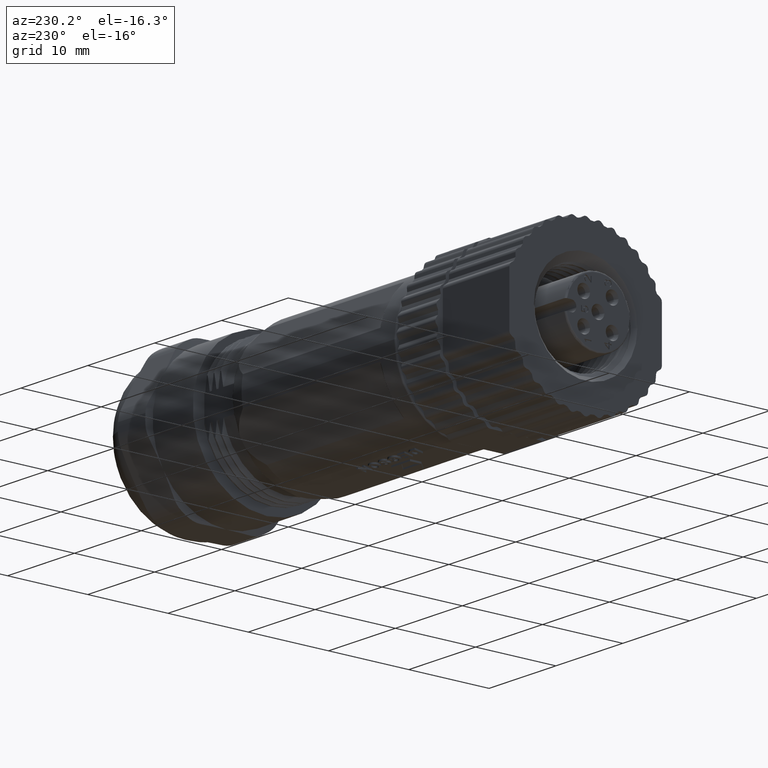
[diagram: clean part render]
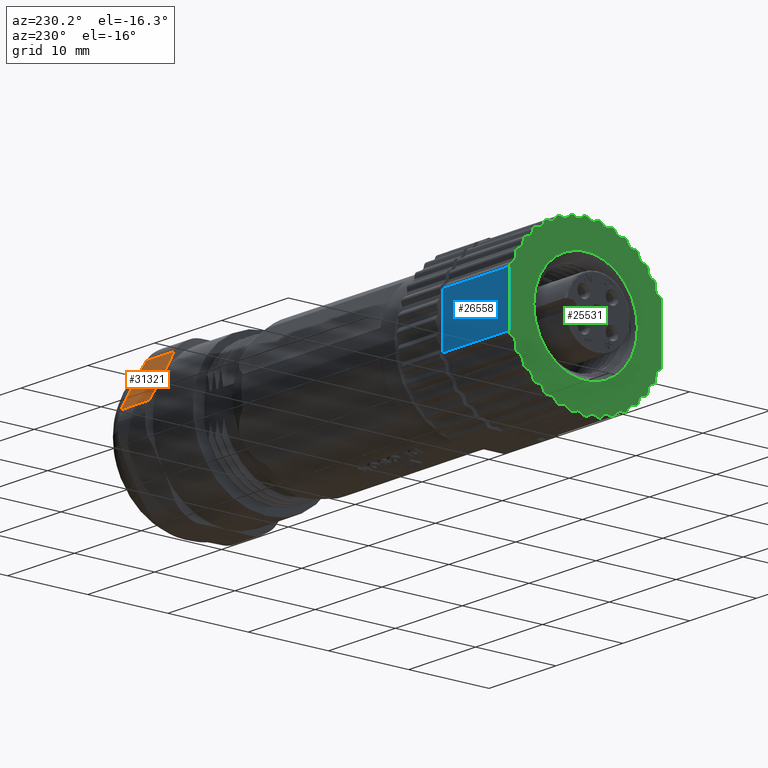
[diagram: same view with three faces highlighted in distinct colors, each labeled with its STEP entity id]
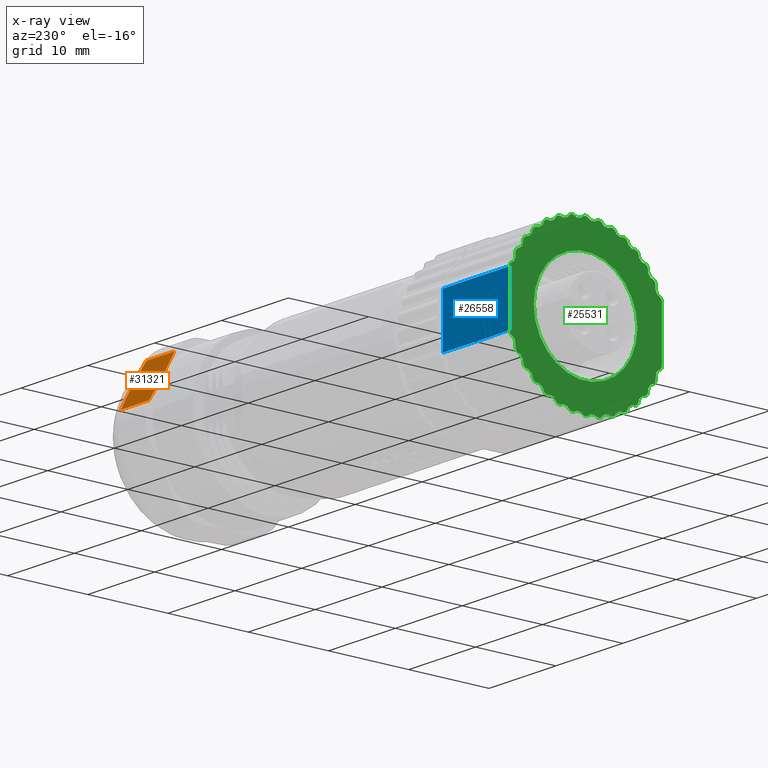
[diagram: x-ray of the same camera — body ghosted, the three highlighted faces saturated]
A machine part, auxiliary view with three faces highlighted in distinct colors.
The next image is the same camera in x-ray (body ghosted, the three faces saturated) — at least one of them is partly hidden behind the body in this view.
Their STEP definitions:

[orange] entity #31321 — the highlighted planar face has unit normal (0, -0.866, -0.5).
#8467=CARTESIAN_POINT('',(4.92E1,8.010734985006E0,4.625E0));
#8468=CARTESIAN_POINT('',(4.920000012125E1,7.993699117631E0,4.654506987845E0));
#8469=CARTESIAN_POINT('',(4.920001035525E1,7.959243789198E0,4.713282629317E0));
#8470=CARTESIAN_POINT('',(4.920087154031E1,7.909951330968E0,4.802721992246E0));
#8471=CARTESIAN_POINT('',(4.920037783399E1,7.871600750823E0,4.859217027936E0));
#8472=CARTESIAN_POINT('',(4.92E1,7.854575172206E0,4.888706195129E0));
#8622=CARTESIAN_POINT('',(4.92E1,7.854575172206E0,4.888706195129E0));
#8623=CARTESIAN_POINT('',(4.920211652600E1,7.735364668527E0,5.095184844297E0));
#8624=CARTESIAN_POINT('',(4.921326984591E1,7.501576704453E0,5.510031473571E0));
#8625=CARTESIAN_POINT('',(4.924064425893E1,7.143744342239E0,6.125825526117E0));
#8626=CARTESIAN_POINT('',(4.928288080243E1,6.789003226895E0,6.741343283081E0));
#8627=CARTESIAN_POINT('',(4.931957454008E1,6.552580764803E0,7.150597194663E0));
#8628=CARTESIAN_POINT('',(4.933997937589E1,6.434544958391E0,7.355041208480E0));
#8635=CARTESIAN_POINT('',(4.933997937589E1,6.434544958391E0,7.355041208480E0));
#8652=DIRECTION('',(1.E0,1.936294216248E-14,-3.683168346123E-14));
#8653=VECTOR('',#8652,4.220041248213E0);
#8654=CARTESIAN_POINT('',(4.933997937589E1,9.586925011621E0,1.894958791520E0));
#8655=LINE('',#8654,#8653);
#8656=DIRECTION('',(-1.E0,1.115473841969E-14,-1.725827453612E-14));
#8657=VECTOR('',#8656,4.220041248213E0);
#8658=CARTESIAN_POINT('',(5.356002062411E1,6.434544958391E0,7.355041208480E0));
#8659=LINE('',#8658,#8657);
#8681=CARTESIAN_POINT('',(4.933997937589E1,9.586925011621E0,1.894958791520E0));
#8682=CARTESIAN_POINT('',(4.930983039762E1,9.412522286926E0,2.197033171670E0));
#8683=CARTESIAN_POINT('',(4.925843889658E1,9.063269188048E0,2.801957283628E0));
#8684=CARTESIAN_POINT('',(4.921081201758E1,8.538235430848E0,3.711342426786E0));
#8685=CARTESIAN_POINT('',(4.92E1,8.186771399795E0,4.320095985604E0));
#8686=CARTESIAN_POINT('',(4.92E1,8.010734985006E0,4.625E0));
#8927=CARTESIAN_POINT('',(5.356002062411E1,9.586925011621E0,1.894958791520E0));
#8943=CARTESIAN_POINT('',(5.356002062411E1,9.586925011621E0,1.894958791520E0));
#8944=CARTESIAN_POINT('',(5.359016960238E1,9.412522286926E0,2.197033171670E0));
#8945=CARTESIAN_POINT('',(5.364156110341E1,9.063269188048E0,2.801957283628E0));
#8946=CARTESIAN_POINT('',(5.368918798241E1,8.538235430848E0,3.711342426786E0));
#8947=CARTESIAN_POINT('',(5.37E1,8.186771399795E0,4.320095985604E0));
#8948=CARTESIAN_POINT('',(5.37E1,8.010734985006E0,4.625E0));
#9158=CARTESIAN_POINT('',(5.37E1,8.010734985006E0,4.625E0));
#9159=CARTESIAN_POINT('',(5.37E1,7.834560396394E0,4.930143338479E0));
#9160=CARTESIAN_POINT('',(5.368917248387E1,7.482910995091E0,5.539217967987E0));
#9161=CARTESIAN_POINT('',(5.364150824162E1,6.957776022355E0,6.448778421597E0));
#9162=CARTESIAN_POINT('',(5.359013810847E1,6.608765500346E0,7.053282378093E0));
#9163=CARTESIAN_POINT('',(5.356002062411E1,6.434544958391E0,7.355041208480E0));
#23136=VERTEX_POINT('',#8635);
#23137=CARTESIAN_POINT('',(5.356002062411E1,6.434544958391E0,7.355041208480E0));
#23138=VERTEX_POINT('',#23137);
#23141=VERTEX_POINT('',#8927);
#23142=CARTESIAN_POINT('',(4.933997937589E1,9.586925011621E0,1.894958791520E0));
#23143=VERTEX_POINT('',#23142);
#23191=VERTEX_POINT('',#8948);
#23197=VERTEX_POINT('',#8686);
#23295=VERTEX_POINT('',#8472);
#31302=CARTESIAN_POINT('',(4.92E1,9.910570504202E0,1.334388354728E0));
#31303=DIRECTION('',(0.E0,-8.660254037844E-1,-5.E-1));
#31304=DIRECTION('',(0.E0,-5.E-1,8.660254037844E-1));
#31305=AXIS2_PLACEMENT_3D('',#31302,#31303,#31304);
#31306=PLANE('',#31305);
#31307=ORIENTED_EDGE('',*,*,#31138,.F.);
#31309=ORIENTED_EDGE('',*,*,#31308,.F.);
#31311=ORIENTED_EDGE('',*,*,#31310,.T.);
#31313=ORIENTED_EDGE('',*,*,#31312,.T.);
#31315=ORIENTED_EDGE('',*,*,#31314,.T.);
#31317=ORIENTED_EDGE('',*,*,#31316,.T.);
#31318=ORIENTED_EDGE('',*,*,#31290,.F.);
#31319=EDGE_LOOP('',(#31307,#31309,#31311,#31313,#31315,#31317,#31318));
#31320=FACE_OUTER_BOUND('',#31319,.F.);
#31321=ADVANCED_FACE('',(#31320),#31306,.F.);
#8473=B_SPLINE_CURVE_WITH_KNOTS('',3,(#8467,#8468,#8469,#8470,#8471,#8472),
.UNSPECIFIED.,.F.,.F.,(4,1,1,4),(0.E0,3.333333333333E-1,6.666666666667E-1,1.E0),
.UNSPECIFIED.);
#8629=B_SPLINE_CURVE_WITH_KNOTS('',3,(#8622,#8623,#8624,#8625,#8626,#8627,
#8628),.UNSPECIFIED.,.F.,.F.,(4,1,1,1,4),(0.E0,2.5E-1,5.E-1,7.5E-1,1.E0),
.UNSPECIFIED.);
#8687=B_SPLINE_CURVE_WITH_KNOTS('',3,(#8681,#8682,#8683,#8684,#8685,#8686),
.UNSPECIFIED.,.F.,.F.,(4,1,1,4),(0.E0,3.333333333333E-1,6.666666666667E-1,1.E0),
.UNSPECIFIED.);
#8949=B_SPLINE_CURVE_WITH_KNOTS('',3,(#8943,#8944,#8945,#8946,#8947,#8948),
.UNSPECIFIED.,.F.,.F.,(4,1,1,4),(0.E0,3.333333333333E-1,6.666666666667E-1,1.E0),
.UNSPECIFIED.);
#9164=B_SPLINE_CURVE_WITH_KNOTS('',3,(#9158,#9159,#9160,#9161,#9162,#9163),
.UNSPECIFIED.,.F.,.F.,(4,1,1,4),(0.E0,3.333333333333E-1,6.666666666667E-1,1.E0),
.UNSPECIFIED.);
#31138=EDGE_CURVE('',#23197,#23295,#8473,.T.);
#31290=EDGE_CURVE('',#23295,#23136,#8629,.T.);
#31308=EDGE_CURVE('',#23143,#23197,#8687,.T.);
#31310=EDGE_CURVE('',#23143,#23141,#8655,.T.);
#31312=EDGE_CURVE('',#23141,#23191,#8949,.T.);
#31314=EDGE_CURVE('',#23191,#23138,#9164,.T.);
#31316=EDGE_CURVE('',#23138,#23136,#8659,.T.);

[blue] entity #26558 — the highlighted planar face has unit normal (0, 1, 0).
#2911=DIRECTION('',(0.E0,0.E0,-1.E0));
#2912=VECTOR('',#2911,6.396264312225E0);
#2913=CARTESIAN_POINT('',(-4.45E0,9.5E0,3.198132156113E0));
#2914=LINE('',#2913,#2912);
#3694=DIRECTION('',(0.E0,0.E0,-1.E0));
#3695=VECTOR('',#3694,6.396264312225E0);
#3696=CARTESIAN_POINT('',(5.5E0,9.5E0,3.198132156113E0));
#3697=LINE('',#3696,#3695);
#3698=DIRECTION('',(1.E0,0.E0,0.E0));
#3699=VECTOR('',#3698,9.95E0);
#3700=CARTESIAN_POINT('',(-4.45E0,9.5E0,3.198132156113E0));
#3701=LINE('',#3700,#3699);
#3702=DIRECTION('',(1.E0,0.E0,0.E0));
#3703=VECTOR('',#3702,9.95E0);
#3704=CARTESIAN_POINT('',(-4.45E0,9.5E0,-3.198132156113E0));
#3705=LINE('',#3704,#3703);
#19793=CARTESIAN_POINT('',(-4.45E0,9.5E0,3.198132156113E0));
#19795=VERTEX_POINT('',#19793);
#19796=CARTESIAN_POINT('',(-4.45E0,9.5E0,-3.198132156113E0));
#19798=VERTEX_POINT('',#19796);
#20032=CARTESIAN_POINT('',(5.5E0,9.5E0,3.198132156113E0));
#20033=CARTESIAN_POINT('',(5.5E0,9.5E0,-3.198132156113E0));
#20034=VERTEX_POINT('',#20032);
#20035=VERTEX_POINT('',#20033);
#26546=CARTESIAN_POINT('',(-4.45E0,9.5E0,3.458415681388E0));
#26547=DIRECTION('',(0.E0,1.E0,0.E0));
#26548=DIRECTION('',(0.E0,0.E0,-1.E0));
#26549=AXIS2_PLACEMENT_3D('',#26546,#26547,#26548);
#26550=PLANE('',#26549);
#26551=ORIENTED_EDGE('',*,*,#25558,.F.);
#26552=ORIENTED_EDGE('',*,*,#26541,.F.);
#26553=ORIENTED_EDGE('',*,*,#25407,.T.);
#26555=ORIENTED_EDGE('',*,*,#26554,.T.);
#26556=EDGE_LOOP('',(#26551,#26552,#26553,#26555));
#26557=FACE_OUTER_BOUND('',#26556,.F.);
#26558=ADVANCED_FACE('',(#26557),#26550,.T.);
#25407=EDGE_CURVE('',#19795,#19798,#2914,.T.);
#25558=EDGE_CURVE('',#20034,#20035,#3697,.T.);
#26541=EDGE_CURVE('',#19795,#20034,#3701,.T.);
#26554=EDGE_CURVE('',#19798,#20035,#3705,.T.);

[green] entity #25531 — the highlighted planar face has unit normal (1, 0, 0).
#2732=CARTESIAN_POINT('',(-4.45E0,-9.E0,-3.198132156113E0));
#2733=DIRECTION('',(-1.E0,0.E0,0.E0));
#2734=DIRECTION('',(0.E0,-5.735764363511E-1,-8.191520442890E-1));
#2735=AXIS2_PLACEMENT_3D('',#2732,#2733,#2734);
#2737=DIRECTION('',(0.E0,8.715574274765E-2,-9.961946980917E-1));
#2738=VECTOR('',#2737,6.833145217205E-1);
#2739=CARTESIAN_POINT('',(-4.45E0,-8.784893469669E0,-4.112863567707E0));
#2740=LINE('',#2739,#2738);
#2741=CARTESIAN_POINT('',(-4.45E0,-8.227241335952E0,-4.75E0));
#2742=DIRECTION('',(1.E0,0.E0,0.E0));
#2743=DIRECTION('',(0.E0,-9.961946980917E-1,-8.715574274767E-2));
#2744=AXIS2_PLACEMENT_3D('',#2741,#2742,#2743);
#2746=DIRECTION('',(0.E0,9.063077870367E-1,-4.226182617407E-1));
#2747=VECTOR('',#2746,3.992834208532E-1);
#2748=CARTESIAN_POINT('',(-4.45E0,-8.438550466823E0,-5.203153893518E0));
#2749=LINE('',#2748,#2747);
#2750=DIRECTION('',(0.E0,8.715574274766E-2,-9.961946980917E-1));
#2751=VECTOR('',#2750,3.992834208532E-1);
#2752=CARTESIAN_POINT('',(-4.45E0,-7.810319401787E0,-5.752296136506E0));
#2753=LINE('',#2752,#2751);
#2754=CARTESIAN_POINT('',(-4.45E0,-7.277422209630E0,-6.106482292022E0));
#2755=DIRECTION('',(1.E0,0.E0,0.E0));
#2756=DIRECTION('',(0.E0,-9.961946980917E-1,-8.715574274766E-2));
#2757=AXIS2_PLACEMENT_3D('',#2754,#2755,#2756);
#2759=DIRECTION('',(0.E0,9.659258262891E-1,-2.588190451025E-1));
#2760=VECTOR('',#2759,3.992834208532E-1);
#2761=CARTESIAN_POINT('',(-4.45E0,-7.406831732182E0,-6.589445205167E0));
#2762=LINE('',#2761,#2760);
#2763=DIRECTION('',(0.E0,2.588190451025E-1,-9.659258262891E-1));
#2764=VECTOR('',#2763,3.992834208532E-1);
#2765=CARTESIAN_POINT('',(-4.45E0,-6.692787358877E0,-7.021153563970E0));
#2766=LINE('',#2765,#2764);
#2767=CARTESIAN_POINT('',(-4.45E0,-6.106482292022E0,-7.277422209630E0));
#2768=DIRECTION('',(1.E0,0.E0,0.E0));
#2769=DIRECTION('',(0.E0,-9.659258262891E-1,-2.588190451025E-1));
#2770=AXIS2_PLACEMENT_3D('',#2767,#2768,#2769);
#2772=DIRECTION('',(0.E0,9.961946980917E-1,-8.715574274765E-2));
#2773=VECTOR('',#2772,3.992834208532E-1);
#2774=CARTESIAN_POINT('',(-4.45E0,-6.150060163396E0,-7.775519558676E0));
#2775=LINE('',#2774,#2773);
#2776=DIRECTION('',(0.E0,4.226182617407E-1,-9.063077870366E-1));
#2777=VECTOR('',#2776,3.992834208532E-1);
#2778=CARTESIAN_POINT('',(-4.45E0,-5.371898358781E0,-8.076676793269E0));
#2779=LINE('',#2778,#2777);
#2780=CARTESIAN_POINT('',(-4.45E0,-4.75E0,-8.227241335952E0));
#2781=DIRECTION('',(1.E0,0.E0,0.E0));
#2782=DIRECTION('',(0.E0,-9.063077870366E-1,-4.226182617407E-1));
#2783=AXIS2_PLACEMENT_3D('',#2780,#2781,#2782);
#2785=DIRECTION('',(0.E0,9.961946980917E-1,8.715574274766E-2));
#2786=VECTOR('',#2785,3.992834208532E-1);
#2787=CARTESIAN_POINT('',(-4.45E0,-4.706422128626E0,-8.725338684998E0));
#2788=LINE('',#2787,#2786);
#2789=DIRECTION('',(0.E0,5.735764363510E-1,-8.191520442890E-1));
#2790=VECTOR('',#2789,3.992834208532E-1);
#2791=CARTESIAN_POINT('',(-4.45E0,-3.887786945365E0,-8.886794285199E0));
#2792=LINE('',#2791,#2790);
#2793=CARTESIAN_POINT('',(-4.45E0,-3.249191361594E0,-8.927079897466E0));
#2794=DIRECTION('',(1.E0,0.E0,0.E0));
#2795=DIRECTION('',(0.E0,-8.191520442890E-1,-5.735764363511E-1));
#2796=AXIS2_PLACEMENT_3D('',#2793,#2794,#2795);
#2798=DIRECTION('',(0.E0,9.659258262891E-1,2.588190451025E-1));
#2799=VECTOR('',#2798,3.992834208532E-1);
#2800=CARTESIAN_POINT('',(-4.45E0,-3.119781839043E0,-9.410042810611E0));
#2801=LINE('',#2800,#2799);
#2802=DIRECTION('',(0.E0,7.071067811866E-1,-7.071067811865E-1));
#2803=VECTOR('',#2802,3.992834208532E-1);
#2804=CARTESIAN_POINT('',(-4.45E0,-2.285547092930E0,-9.426891029709E0));
#2805=LINE('',#2804,#2803);
#2806=CARTESIAN_POINT('',(-4.45E0,-1.649657687836E0,-9.355673653616E0));
#2807=DIRECTION('',(1.E0,0.E0,0.E0));
#2808=DIRECTION('',(0.E0,-7.071067811865E-1,-7.071067811865E-1));
#2809=AXIS2_PLACEMENT_3D('',#2806,#2807,#2808);
#2811=DIRECTION('',(0.E0,9.063077870366E-1,4.226182617407E-1));
#2812=VECTOR('',#2811,3.992834208532E-1);
#2813=CARTESIAN_POINT('',(-4.45E0,-1.438348556965E0,-9.808827547134E0));
#2814=LINE('',#2813,#2812);
#2815=DIRECTION('',(0.E0,8.191520442890E-1,-5.735764363510E-1));
#2816=VECTOR('',#2815,3.992834208532E-1);
#2817=CARTESIAN_POINT('',(-4.45E0,-6.138620486181E-1,-9.680556460517E0));
#2818=LINE('',#2817,#2816);
#2819=CARTESIAN_POINT('',(-4.45E0,0.E0,-9.5E0));
#2820=DIRECTION('',(1.E0,0.E0,0.E0));
#2821=DIRECTION('',(0.E0,-5.735764363510E-1,-8.191520442890E-1));
#2822=AXIS2_PLACEMENT_3D('',#2819,#2820,#2821);
#2824=DIRECTION('',(0.E0,8.191520442890E-1,5.735764363510E-1));
#2825=VECTOR('',#2824,3.992834208532E-1);
#2826=CARTESIAN_POINT('',(-4.45E0,2.867882181755E-1,-9.909576022144E0));
#2827=LINE('',#2826,#2825);
#2828=DIRECTION('',(0.E0,9.063077870367E-1,-4.226182617407E-1));
#2829=VECTOR('',#2828,3.992834208532E-1);
#2830=CARTESIAN_POINT('',(-4.45E0,1.076474883412E0,-9.640083081871E0));
#2831=LINE('',#2830,#2829);
#2832=CARTESIAN_POINT('',(-4.45E0,1.649657687836E0,-9.355673653616E0));
#2833=DIRECTION('',(1.E0,0.E0,0.E0));
#2834=DIRECTION('',(0.E0,-4.226182617407E-1,-9.063077870367E-1));
#2835=AXIS2_PLACEMENT_3D('',#2832,#2833,#2834);
#2837=DIRECTION('',(0.E0,7.071067811866E-1,7.071067811865E-1));
#2838=VECTOR('',#2837,3.992834208532E-1);
#2839=CARTESIAN_POINT('',(-4.45E0,2.003211078429E0,-9.709227044209E0));
#2840=LINE('',#2839,#2838);
#2841=DIRECTION('',(0.E0,9.659258262891E-1,-2.588190451025E-1));
#2842=VECTOR('',#2841,3.992834208532E-1);
#2843=CARTESIAN_POINT('',(-4.45E0,2.734103670831E0,-9.306700656900E0));
#2844=LINE('',#2843,#2842);
#2845=CARTESIAN_POINT('',(-4.45E0,3.249191361594E0,-8.927079897466E0));
#2846=DIRECTION('',(1.E0,0.E0,0.E0));
#2847=DIRECTION('',(0.E0,-2.588190451025E-1,-9.659258262891E-1));
#2848=AXIS2_PLACEMENT_3D('',#2845,#2846,#2847);
#2850=DIRECTION('',(0.E0,5.735764363510E-1,8.191520442890E-1));
#2851=VECTOR('',#2850,3.992834208532E-1);
#2852=CARTESIAN_POINT('',(-4.45E0,3.658767383738E0,-9.213868115642E0));
#2853=LINE('',#2852,#2851);
#2854=DIRECTION('',(0.E0,9.961946980917E-1,-8.715574274765E-2));
#2855=VECTOR('',#2854,3.992834208532E-1);
#2856=CARTESIAN_POINT('',(-4.45E0,4.308658101736E0,-8.690538841887E0));
#2857=LINE('',#2856,#2855);
#2858=CARTESIAN_POINT('',(-4.45E0,4.75E0,-8.227241335952E0));
#2859=DIRECTION('',(1.E0,0.E0,0.E0));
#2860=DIRECTION('',(0.E0,-8.715574274765E-2,-9.961946980917E-1));
#2861=AXIS2_PLACEMENT_3D('',#2858,#2859,#2860);
#2863=DIRECTION('',(0.E0,4.226182617407E-1,9.063077870366E-1));
#2864=VECTOR('',#2863,3.992834208532E-1);
#2865=CARTESIAN_POINT('',(-4.45E0,5.203153893518E0,-8.438550466823E0));
#2866=LINE('',#2865,#2864);
#2867=DIRECTION('',(0.E0,9.961946980917E-1,8.715574274766E-2));
#2868=VECTOR('',#2867,3.992834208532E-1);
#2869=CARTESIAN_POINT('',(-4.45E0,5.752296136506E0,-7.810319401787E0));
#2870=LINE('',#2869,#2868);
#2871=CARTESIAN_POINT('',(-4.45E0,6.106482292022E0,-7.277422209630E0));
#2872=DIRECTION('',(1.E0,0.E0,0.E0));
#2873=DIRECTION('',(0.E0,8.715574274766E-2,-9.961946980917E-1));
#2874=AXIS2_PLACEMENT_3D('',#2871,#2872,#2873);
#2876=DIRECTION('',(0.E0,2.588190451025E-1,9.659258262891E-1));
#2877=VECTOR('',#2876,3.992834208532E-1);
#2878=CARTESIAN_POINT('',(-4.45E0,6.589445205167E0,-7.406831732182E0));
#2879=LINE('',#2878,#2877);
#2880=DIRECTION('',(0.E0,9.659258262891E-1,2.588190451025E-1));
#2881=VECTOR('',#2880,3.992834208532E-1);
#2882=CARTESIAN_POINT('',(-4.45E0,7.021153563970E0,-6.692787358877E0));
#2883=LINE('',#2882,#2881);
#2884=CARTESIAN_POINT('',(-4.45E0,7.277422209630E0,-6.106482292022E0));
#2885=DIRECTION('',(1.E0,0.E0,0.E0));
#2886=DIRECTION('',(0.E0,2.588190451025E-1,-9.659258262891E-1));
#2887=AXIS2_PLACEMENT_3D('',#2884,#2885,#2886);
#2889=DIRECTION('',(0.E0,8.715574274766E-2,9.961946980917E-1));
#2890=VECTOR('',#2889,3.992834208532E-1);
#2891=CARTESIAN_POINT('',(-4.45E0,7.775519558676E0,-6.150060163396E0));
#2892=LINE('',#2891,#2890);
#2893=DIRECTION('',(0.E0,9.063077870366E-1,4.226182617407E-1));
#2894=VECTOR('',#2893,3.992834208532E-1);
#2895=CARTESIAN_POINT('',(-4.45E0,8.076676793269E0,-5.371898358781E0));
#2896=LINE('',#2895,#2894);
#2897=CARTESIAN_POINT('',(-4.45E0,8.227241335952E0,-4.75E0));
#2898=DIRECTION('',(1.E0,0.E0,0.E0));
#2899=DIRECTION('',(0.E0,4.226182617407E-1,-9.063077870366E-1));
#2900=AXIS2_PLACEMENT_3D('',#2897,#2898,#2899);
#2902=DIRECTION('',(0.E0,8.715574274765E-2,9.961946980917E-1));
#2903=VECTOR('',#2902,6.833145217205E-1);
#2904=CARTESIAN_POINT('',(-4.45E0,8.725338684998E0,-4.793577871374E0));
#2905=LINE('',#2904,#2903);
#2906=CARTESIAN_POINT('',(-4.45E0,9.E0,-3.198132156113E0));
#2907=DIRECTION('',(-1.E0,0.E0,0.E0));
#2908=DIRECTION('',(0.E0,1.E0,0.E0));
#2909=AXIS2_PLACEMENT_3D('',#2906,#2907,#2908);
#2911=DIRECTION('',(0.E0,0.E0,-1.E0));
#2912=VECTOR('',#2911,6.396264312225E0);
#2913=CARTESIAN_POINT('',(-4.45E0,9.5E0,3.198132156113E0));
#2914=LINE('',#2913,#2912);
#2915=CARTESIAN_POINT('',(-4.45E0,9.E0,3.198132156113E0));
#2916=DIRECTION('',(-1.E0,0.E0,0.E0));
#2917=DIRECTION('',(0.E0,5.735764363510E-1,8.191520442890E-1));
#2918=AXIS2_PLACEMENT_3D('',#2915,#2916,#2917);
#2920=DIRECTION('',(0.E0,0.E0,1.E0));
#2921=VECTOR('',#2920,5.161768265493E-1);
#2922=CARTESIAN_POINT('',(-4.45E0,8.727241335952E0,4.233823173451E0));
#2923=LINE('',#2922,#2921);
#2924=CARTESIAN_POINT('',(-4.45E0,8.227241335952E0,4.75E0));
#2925=DIRECTION('',(1.E0,0.E0,0.E0));
#2926=DIRECTION('',(0.E0,1.E0,0.E0));
#2927=AXIS2_PLACEMENT_3D('',#2924,#2925,#2926);
#2929=DIRECTION('',(0.E0,-9.063077870366E-1,4.226182617407E-1));
#2930=VECTOR('',#2929,3.992834208532E-1);
#2931=CARTESIAN_POINT('',(-4.45E0,8.438550466823E0,5.203153893518E0));
#2932=LINE('',#2931,#2930);
#2933=DIRECTION('',(0.E0,-8.715574274766E-2,9.961946980917E-1));
#2934=VECTOR('',#2933,3.992834208532E-1);
#2935=CARTESIAN_POINT('',(-4.45E0,7.810319401787E0,5.752296136506E0));
#2936=LINE('',#2935,#2934);
#2937=CARTESIAN_POINT('',(-4.45E0,7.277422209630E0,6.106482292022E0));
#2938=DIRECTION('',(1.E0,0.E0,0.E0));
#2939=DIRECTION('',(0.E0,9.961946980917E-1,8.715574274766E-2));
#2940=AXIS2_PLACEMENT_3D('',#2937,#2938,#2939);
#2942=DIRECTION('',(0.E0,-9.659258262891E-1,2.588190451025E-1));
#2943=VECTOR('',#2942,3.992834208532E-1);
#2944=CARTESIAN_POINT('',(-4.45E0,7.406831732182E0,6.589445205167E0));
#2945=LINE('',#2944,#2943);
#2946=DIRECTION('',(0.E0,-2.588190451025E-1,9.659258262891E-1));
#2947=VECTOR('',#2946,3.992834208532E-1);
#2948=CARTESIAN_POINT('',(-4.45E0,6.692787358877E0,7.021153563970E0));
#2949=LINE('',#2948,#2947);
#2950=CARTESIAN_POINT('',(-4.45E0,6.106482292022E0,7.277422209630E0));
#2951=DIRECTION('',(1.E0,0.E0,0.E0));
#2952=DIRECTION('',(0.E0,9.659258262891E-1,2.588190451025E-1));
#2953=AXIS2_PLACEMENT_3D('',#2950,#2951,#2952);
#2955=DIRECTION('',(0.E0,-9.961946980917E-1,8.715574274766E-2));
#2956=VECTOR('',#2955,3.992834208532E-1);
#2957=CARTESIAN_POINT('',(-4.45E0,6.150060163396E0,7.775519558676E0));
#2958=LINE('',#2957,#2956);
#2959=DIRECTION('',(0.E0,-4.226182617407E-1,9.063077870366E-1));
#2960=VECTOR('',#2959,3.992834208532E-1);
#2961=CARTESIAN_POINT('',(-4.45E0,5.371898358781E0,8.076676793269E0));
#2962=LINE('',#2961,#2960);
#2963=CARTESIAN_POINT('',(-4.45E0,4.75E0,8.227241335952E0));
#2964=DIRECTION('',(1.E0,0.E0,0.E0));
#2965=DIRECTION('',(0.E0,9.063077870366E-1,4.226182617407E-1));
#2966=AXIS2_PLACEMENT_3D('',#2963,#2964,#2965);
#2968=DIRECTION('',(0.E0,-9.961946980917E-1,-8.715574274765E-2));
#2969=VECTOR('',#2968,3.992834208532E-1);
#2970=CARTESIAN_POINT('',(-4.45E0,4.706422128626E0,8.725338684998E0));
#2971=LINE('',#2970,#2969);
#2972=DIRECTION('',(0.E0,-5.735764363511E-1,8.191520442890E-1));
#2973=VECTOR('',#2972,3.992834208532E-1);
#2974=CARTESIAN_POINT('',(-4.45E0,3.887786945365E0,8.886794285199E0));
#2975=LINE('',#2974,#2973);
#2976=CARTESIAN_POINT('',(-4.45E0,3.249191361594E0,8.927079897466E0));
#2977=DIRECTION('',(1.E0,0.E0,0.E0));
#2978=DIRECTION('',(0.E0,8.191520442890E-1,5.735764363511E-1));
#2979=AXIS2_PLACEMENT_3D('',#2976,#2977,#2978);
#2981=DIRECTION('',(0.E0,-9.659258262891E-1,-2.588190451025E-1));
#2982=VECTOR('',#2981,3.992834208532E-1);
#2983=CARTESIAN_POINT('',(-4.45E0,3.119781839043E0,9.410042810611E0));
#2984=LINE('',#2983,#2982);
#2985=DIRECTION('',(0.E0,-7.071067811865E-1,7.071067811865E-1));
#2986=VECTOR('',#2985,3.992834208532E-1);
#2987=CARTESIAN_POINT('',(-4.45E0,2.285547092930E0,9.426891029709E0));
#2988=LINE('',#2987,#2986);
#2989=CARTESIAN_POINT('',(-4.45E0,1.649657687836E0,9.355673653616E0));
#2990=DIRECTION('',(1.E0,0.E0,0.E0));
#2991=DIRECTION('',(0.E0,7.071067811865E-1,7.071067811865E-1));
#2992=AXIS2_PLACEMENT_3D('',#2989,#2990,#2991);
#2994=DIRECTION('',(0.E0,-9.063077870366E-1,-4.226182617407E-1));
#2995=VECTOR('',#2994,3.992834208532E-1);
#2996=CARTESIAN_POINT('',(-4.45E0,1.438348556965E0,9.808827547134E0));
#2997=LINE('',#2996,#2995);
#2998=DIRECTION('',(0.E0,-8.191520442890E-1,5.735764363510E-1));
#2999=VECTOR('',#2998,3.992834208532E-1);
#3000=CARTESIAN_POINT('',(-4.45E0,6.138620486181E-1,9.680556460517E0));
#3001=LINE('',#3000,#2999);
#3002=CARTESIAN_POINT('',(-4.45E0,0.E0,9.5E0));
#3003=DIRECTION('',(1.E0,0.E0,0.E0));
#3004=DIRECTION('',(0.E0,5.735764363510E-1,8.191520442890E-1));
#3005=AXIS2_PLACEMENT_3D('',#3002,#3003,#3004);
#3007=DIRECTION('',(0.E0,-8.191520442890E-1,-5.735764363510E-1));
#3008=VECTOR('',#3007,3.992834208532E-1);
#3009=CARTESIAN_POINT('',(-4.45E0,-2.867882181755E-1,9.909576022144E0));
#3010=LINE('',#3009,#3008);
#3011=DIRECTION('',(0.E0,-9.063077870366E-1,4.226182617407E-1));
#3012=VECTOR('',#3011,3.992834208532E-1);
#3013=CARTESIAN_POINT('',(-4.45E0,-1.076474883412E0,9.640083081871E0));
#3014=LINE('',#3013,#3012);
#3015=CARTESIAN_POINT('',(-4.45E0,-1.649657687836E0,9.355673653616E0));
#3016=DIRECTION('',(1.E0,0.E0,0.E0));
#3017=DIRECTION('',(0.E0,4.226182617407E-1,9.063077870367E-1));
#3018=AXIS2_PLACEMENT_3D('',#3015,#3016,#3017);
#3020=DIRECTION('',(0.E0,-7.071067811865E-1,-7.071067811865E-1));
#3021=VECTOR('',#3020,3.992834208532E-1);
#3022=CARTESIAN_POINT('',(-4.45E0,-2.003211078429E0,9.709227044209E0));
#3023=LINE('',#3022,#3021);
#3024=DIRECTION('',(0.E0,-9.659258262891E-1,2.588190451025E-1));
#3025=VECTOR('',#3024,3.992834208532E-1);
#3026=CARTESIAN_POINT('',(-4.45E0,-2.734103670831E0,9.306700656900E0));
#3027=LINE('',#3026,#3025);
#3028=CARTESIAN_POINT('',(-4.45E0,-3.249191361594E0,8.927079897466E0));
#3029=DIRECTION('',(1.E0,0.E0,0.E0));
#3030=DIRECTION('',(0.E0,2.588190451025E-1,9.659258262891E-1));
#3031=AXIS2_PLACEMENT_3D('',#3028,#3029,#3030);
#3033=DIRECTION('',(0.E0,-5.735764363510E-1,-8.191520442890E-1));
#3034=VECTOR('',#3033,3.992834208532E-1);
#3035=CARTESIAN_POINT('',(-4.45E0,-3.658767383738E0,9.213868115642E0));
#3036=LINE('',#3035,#3034);
#3037=DIRECTION('',(0.E0,-9.961946980917E-1,8.715574274765E-2));
#3038=VECTOR('',#3037,3.992834208532E-1);
#3039=CARTESIAN_POINT('',(-4.45E0,-4.308658101736E0,8.690538841887E0));
#3040=LINE('',#3039,#3038);
#3041=CARTESIAN_POINT('',(-4.45E0,-4.75E0,8.227241335952E0));
#3042=DIRECTION('',(1.E0,0.E0,0.E0));
#3043=DIRECTION('',(0.E0,8.715574274766E-2,9.961946980917E-1));
#3044=AXIS2_PLACEMENT_3D('',#3041,#3042,#3043);
#3046=DIRECTION('',(0.E0,-4.226182617407E-1,-9.063077870367E-1));
#3047=VECTOR('',#3046,3.992834208532E-1);
#3048=CARTESIAN_POINT('',(-4.45E0,-5.203153893518E0,8.438550466823E0));
#3049=LINE('',#3048,#3047);
#3050=DIRECTION('',(0.E0,-9.961946980917E-1,-8.715574274766E-2));
#3051=VECTOR('',#3050,3.992834208532E-1);
#3052=CARTESIAN_POINT('',(-4.45E0,-5.752296136506E0,7.810319401787E0));
#3053=LINE('',#3052,#3051);
#3054=CARTESIAN_POINT('',(-4.45E0,-6.106482292022E0,7.277422209630E0));
#3055=DIRECTION('',(1.E0,0.E0,0.E0));
#3056=DIRECTION('',(0.E0,-8.715574274766E-2,9.961946980917E-1));
#3057=AXIS2_PLACEMENT_3D('',#3054,#3055,#3056);
#3059=DIRECTION('',(0.E0,-2.588190451025E-1,-9.659258262891E-1));
#3060=VECTOR('',#3059,3.992834208532E-1);
#3061=CARTESIAN_POINT('',(-4.45E0,-6.589445205167E0,7.406831732182E0));
#3062=LINE('',#3061,#3060);
#3063=DIRECTION('',(0.E0,-9.659258262891E-1,-2.588190451025E-1));
#3064=VECTOR('',#3063,3.992834208532E-1);
#3065=CARTESIAN_POINT('',(-4.45E0,-7.021153563970E0,6.692787358877E0));
#3066=LINE('',#3065,#3064);
#3067=CARTESIAN_POINT('',(-4.45E0,-7.277422209630E0,6.106482292022E0));
#3068=DIRECTION('',(1.E0,0.E0,0.E0));
#3069=DIRECTION('',(0.E0,-2.588190451025E-1,9.659258262891E-1));
#3070=AXIS2_PLACEMENT_3D('',#3067,#3068,#3069);
#3072=DIRECTION('',(0.E0,-8.715574274765E-2,-9.961946980917E-1));
#3073=VECTOR('',#3072,3.992834208532E-1);
#3074=CARTESIAN_POINT('',(-4.45E0,-7.775519558676E0,6.150060163396E0));
#3075=LINE('',#3074,#3073);
#3076=DIRECTION('',(0.E0,-9.063077870366E-1,-4.226182617407E-1));
#3077=VECTOR('',#3076,3.992834208532E-1);
#3078=CARTESIAN_POINT('',(-4.45E0,-8.076676793269E0,5.371898358781E0));
#3079=LINE('',#3078,#3077);
#3080=CARTESIAN_POINT('',(-4.45E0,-8.227241335952E0,4.75E0));
#3081=DIRECTION('',(1.E0,0.E0,0.E0));
#3082=DIRECTION('',(0.E0,-4.226182617407E-1,9.063077870366E-1));
#3083=AXIS2_PLACEMENT_3D('',#3080,#3081,#3082);
#3085=DIRECTION('',(0.E0,0.E0,-1.E0));
#3086=VECTOR('',#3085,5.161768265493E-1);
#3087=CARTESIAN_POINT('',(-4.45E0,-8.727241335952E0,4.75E0));
#3088=LINE('',#3087,#3086);
#3089=CARTESIAN_POINT('',(-4.45E0,-9.E0,3.198132156113E0));
#3090=DIRECTION('',(-1.E0,0.E0,0.E0));
#3091=DIRECTION('',(0.E0,-1.E0,0.E0));
#3092=AXIS2_PLACEMENT_3D('',#3089,#3090,#3091);
#3094=DIRECTION('',(0.E0,0.E0,1.E0));
#3095=VECTOR('',#3094,6.396264312225E0);
#3096=CARTESIAN_POINT('',(-4.45E0,-9.5E0,-3.198132156113E0));
#3097=LINE('',#3096,#3095);
#3098=CARTESIAN_POINT('',(-4.45E0,0.E0,0.E0));
#3099=DIRECTION('',(-1.E0,0.E0,0.E0));
#3100=DIRECTION('',(0.E0,-1.E0,0.E0));
#3101=AXIS2_PLACEMENT_3D('',#3098,#3099,#3100);
#3103=CARTESIAN_POINT('',(-4.45E0,0.E0,0.E0));
#3104=DIRECTION('',(-1.E0,0.E0,0.E0));
#3105=DIRECTION('',(0.E0,1.E0,0.E0));
#3106=AXIS2_PLACEMENT_3D('',#3103,#3104,#3105);
#3132=CARTESIAN_POINT('',(-4.45E0,0.E0,0.E0));
#3133=DIRECTION('',(-1.E0,0.E0,0.E0));
#3134=DIRECTION('',(0.E0,8.997156016446E-1,4.364766158197E-1));
#3135=AXIS2_PLACEMENT_3D('',#3132,#3133,#3134);
#3171=CARTESIAN_POINT('',(-4.45E0,0.E0,0.E0));
#3172=DIRECTION('',(-1.E0,0.E0,0.E0));
#3173=DIRECTION('',(0.E0,8.051875671946E-1,5.930202202584E-1));
#3174=AXIS2_PLACEMENT_3D('',#3171,#3172,#3173);
#3210=CARTESIAN_POINT('',(-4.45E0,0.E0,0.E0));
#3211=DIRECTION('',(-1.E0,0.E0,0.E0));
#3212=DIRECTION('',(0.E0,6.899780782348E-1,7.238302643268E-1));
#3213=AXIS2_PLACEMENT_3D('',#3210,#3211,#3212);
#3249=CARTESIAN_POINT('',(-4.45E0,0.E0,0.E0));
#3250=DIRECTION('',(-1.E0,0.E0,0.E0));
#3251=DIRECTION('',(0.E0,5.538039545135E-1,8.326470920895E-1));
#3252=AXIS2_PLACEMENT_3D('',#3249,#3250,#3251);
#3288=CARTESIAN_POINT('',(-4.45E0,0.E0,0.E0));
#3289=DIRECTION('',(-1.E0,0.E0,0.E0));
#3290=DIRECTION('',(0.E0,4.008027778727E-1,9.161643592989E-1));
#3291=AXIS2_PLACEMENT_3D('',#3288,#3289,#3290);
#3327=CARTESIAN_POINT('',(-4.45E0,0.E0,0.E0));
#3328=DIRECTION('',(-1.E0,0.E0,0.E0));
#3329=DIRECTION('',(0.E0,2.356234116422E-1,9.718444360524E-1));
#3330=AXIS2_PLACEMENT_3D('',#3327,#3328,#3329);
#3366=CARTESIAN_POINT('',(-4.45E0,0.E0,0.E0));
#3367=DIRECTION('',(-1.E0,0.E0,0.E0));
#3368=DIRECTION('',(0.E0,6.328474728022E-2,9.979955113936E-1));
#3369=AXIS2_PLACEMENT_3D('',#3366,#3367,#3368);
#3405=CARTESIAN_POINT('',(-4.45E0,0.E0,0.E0));
#3406=DIRECTION('',(-1.E0,0.E0,0.E0));
#3407=DIRECTION('',(0.E0,-1.109767921043E-1,9.938229981311E-1));
#3408=AXIS2_PLACEMENT_3D('',#3405,#3406,#3407);
#3444=CARTESIAN_POINT('',(-4.45E0,0.E0,0.E0));
#3445=DIRECTION('',(-1.E0,0.E0,0.E0));
#3446=DIRECTION('',(0.E0,-2.818663578177E-1,9.594536759691E-1));
#3447=AXIS2_PLACEMENT_3D('',#3444,#3445,#3446);
#3483=CARTESIAN_POINT('',(-4.45E0,0.E0,0.E0));
#3484=DIRECTION('',(-1.E0,0.E0,0.E0));
#3485=DIRECTION('',(0.E0,-4.441915568800E-1,8.959318393698E-1));
#3486=AXIS2_PLACEMENT_3D('',#3483,#3484,#3485);
#3522=CARTESIAN_POINT('',(-4.45E0,0.E0,0.E0));
#3523=DIRECTION('',(-1.E0,0.E0,0.E0));
#3524=DIRECTION('',(0.E0,-5.930202202584E-1,8.051875671946E-1));
#3525=AXIS2_PLACEMENT_3D('',#3522,#3523,#3524);
#3561=CARTESIAN_POINT('',(-4.45E0,0.E0,0.E0));
#3562=DIRECTION('',(-1.E0,0.E0,0.E0));
#3563=DIRECTION('',(0.E0,-7.238302643268E-1,6.899780782348E-1));
#3564=AXIS2_PLACEMENT_3D('',#3561,#3562,#3563);
#3600=CARTESIAN_POINT('',(-4.45E0,0.E0,0.E0));
#3601=DIRECTION('',(-1.E0,0.E0,0.E0));
#3602=DIRECTION('',(0.E0,-8.326470920895E-1,5.538039545135E-1));
#3603=AXIS2_PLACEMENT_3D('',#3600,#3601,#3602);
#3639=CARTESIAN_POINT('',(-4.45E0,0.E0,0.E0));
#3640=DIRECTION('',(-1.E0,0.E0,0.E0));
#3641=DIRECTION('',(0.E0,-9.161643592989E-1,4.008027778727E-1));
#3642=AXIS2_PLACEMENT_3D('',#3639,#3640,#3641);
#3656=DIRECTION('',(0.E0,8.191520442890E-1,5.735764363510E-1));
#3657=VECTOR('',#3656,4.883024290364E-1);
#3658=CARTESIAN_POINT('',(-4.45E0,-9.286788218176E0,3.607708178257E0));
#3659=LINE('',#3658,#3657);
#3681=DIRECTION('',(0.E0,8.191520442890E-1,-5.735764363511E-1));
#3682=VECTOR('',#3681,4.883024290364E-1);
#3683=CARTESIAN_POINT('',(-4.45E0,8.886794285199E0,3.887786945365E0));
#3684=LINE('',#3683,#3682);
#3719=DIRECTION('',(0.E0,-8.191520442890E-1,-5.735764363510E-1));
#3720=VECTOR('',#3719,4.883024290364E-1);
#3721=CARTESIAN_POINT('',(-4.45E0,9.286788218176E0,-3.607708178257E0));
#3722=LINE('',#3721,#3720);
#3732=CARTESIAN_POINT('',(-4.45E0,0.E0,0.E0));
#3733=DIRECTION('',(-1.E0,0.E0,0.E0));
#3734=DIRECTION('',(0.E0,9.161643592989E-1,-4.008027778727E-1));
#3735=AXIS2_PLACEMENT_3D('',#3732,#3733,#3734);
#3771=CARTESIAN_POINT('',(-4.45E0,0.E0,0.E0));
#3772=DIRECTION('',(-1.E0,0.E0,0.E0));
#3773=DIRECTION('',(0.E0,8.326470920895E-1,-5.538039545135E-1));
#3774=AXIS2_PLACEMENT_3D('',#3771,#3772,#3773);
#3810=CARTESIAN_POINT('',(-4.45E0,0.E0,0.E0));
#3811=DIRECTION('',(-1.E0,0.E0,0.E0));
#3812=DIRECTION('',(0.E0,7.238302643268E-1,-6.899780782348E-1));
#3813=AXIS2_PLACEMENT_3D('',#3810,#3811,#3812);
#3849=CARTESIAN_POINT('',(-4.45E0,0.E0,0.E0));
#3850=DIRECTION('',(-1.E0,0.E0,0.E0));
#3851=DIRECTION('',(0.E0,5.930202202584E-1,-8.051875671946E-1));
#3852=AXIS2_PLACEMENT_3D('',#3849,#3850,#3851);
#3888=CARTESIAN_POINT('',(-4.45E0,0.E0,0.E0));
#3889=DIRECTION('',(-1.E0,0.E0,0.E0));
#3890=DIRECTION('',(0.E0,4.441915568800E-1,-8.959318393698E-1));
#3891=AXIS2_PLACEMENT_3D('',#3888,#3889,#3890);
#3927=CARTESIAN_POINT('',(-4.45E0,0.E0,0.E0));
#3928=DIRECTION('',(-1.E0,0.E0,0.E0));
#3929=DIRECTION('',(0.E0,2.818663578177E-1,-9.594536759691E-1));
#3930=AXIS2_PLACEMENT_3D('',#3927,#3928,#3929);
#3966=CARTESIAN_POINT('',(-4.45E0,0.E0,0.E0));
#3967=DIRECTION('',(-1.E0,0.E0,0.E0));
#3968=DIRECTION('',(0.E0,1.109767921043E-1,-9.938229981311E-1));
#3969=AXIS2_PLACEMENT_3D('',#3966,#3967,#3968);
#4005=CARTESIAN_POINT('',(-4.45E0,0.E0,0.E0));
#4006=DIRECTION('',(-1.E0,0.E0,0.E0));
#4007=DIRECTION('',(0.E0,-6.328474728022E-2,-9.979955113936E-1));
#4008=AXIS2_PLACEMENT_3D('',#4005,#4006,#4007);
#4044=CARTESIAN_POINT('',(-4.45E0,0.E0,0.E0));
#4045=DIRECTION('',(-1.E0,0.E0,0.E0));
#4046=DIRECTION('',(0.E0,-2.356234116422E-1,-9.718444360524E-1));
#4047=AXIS2_PLACEMENT_3D('',#4044,#4045,#4046);
#4083=CARTESIAN_POINT('',(-4.45E0,0.E0,0.E0));
#4084=DIRECTION('',(-1.E0,0.E0,0.E0));
#4085=DIRECTION('',(0.E0,-4.008027778727E-1,-9.161643592989E-1));
#4086=AXIS2_PLACEMENT_3D('',#4083,#4084,#4085);
#4122=CARTESIAN_POINT('',(-4.45E0,0.E0,0.E0));
#4123=DIRECTION('',(-1.E0,0.E0,0.E0));
#4124=DIRECTION('',(0.E0,-5.538039545135E-1,-8.326470920895E-1));
#4125=AXIS2_PLACEMENT_3D('',#4122,#4123,#4124);
#4161=CARTESIAN_POINT('',(-4.45E0,0.E0,0.E0));
#4162=DIRECTION('',(-1.E0,0.E0,0.E0));
#4163=DIRECTION('',(0.E0,-6.899780782348E-1,-7.238302643268E-1));
#4164=AXIS2_PLACEMENT_3D('',#4161,#4162,#4163);
#4200=CARTESIAN_POINT('',(-4.45E0,0.E0,0.E0));
#4201=DIRECTION('',(-1.E0,0.E0,0.E0));
#4202=DIRECTION('',(0.E0,-8.051875671946E-1,-5.930202202584E-1));
#4203=AXIS2_PLACEMENT_3D('',#4200,#4201,#4202);
#4239=CARTESIAN_POINT('',(-4.45E0,0.E0,0.E0));
#4240=DIRECTION('',(-1.E0,0.E0,0.E0));
#4241=DIRECTION('',(0.E0,-9.056591205844E-1,-4.240065533718E-1));
#4242=AXIS2_PLACEMENT_3D('',#4239,#4240,#4241);
#4252=DIRECTION('',(0.E0,-8.191520442890E-1,5.735764363510E-1));
#4253=VECTOR('',#4252,4.883024290364E-1);
#4254=CARTESIAN_POINT('',(-4.45E0,-8.886794285199E0,-3.887786945365E0));
#4255=LINE('',#4254,#4253);
#19490=CARTESIAN_POINT('',(-4.45E0,8.438550466823E0,5.203153893518E0));
#19491=CARTESIAN_POINT('',(-4.45E0,8.076676793269E0,5.371898358781E0));
#19492=VERTEX_POINT('',#19490);
#19493=VERTEX_POINT('',#19491);
#19494=CARTESIAN_POINT('',(-4.45E0,7.810319401787E0,5.752296136506E0));
#19495=CARTESIAN_POINT('',(-4.45E0,7.775519558676E0,6.150060163396E0));
#19496=VERTEX_POINT('',#19494);
#19497=VERTEX_POINT('',#19495);
#19498=CARTESIAN_POINT('',(-4.45E0,7.406831732182E0,6.589445205167E0));
#19499=CARTESIAN_POINT('',(-4.45E0,7.021153563970E0,6.692787358877E0));
#19500=VERTEX_POINT('',#19498);
#19501=VERTEX_POINT('',#19499);
#19502=CARTESIAN_POINT('',(-4.45E0,6.692787358877E0,7.021153563970E0));
#19503=CARTESIAN_POINT('',(-4.45E0,6.589445205167E0,7.406831732182E0));
#19504=VERTEX_POINT('',#19502);
#19505=VERTEX_POINT('',#19503);
#19506=CARTESIAN_POINT('',(-4.45E0,6.150060163396E0,7.775519558676E0));
#19507=CARTESIAN_POINT('',(-4.45E0,5.752296136506E0,7.810319401787E0));
#19508=VERTEX_POINT('',#19506);
#19509=VERTEX_POINT('',#19507);
#19510=CARTESIAN_POINT('',(-4.45E0,5.371898358781E0,8.076676793269E0));
#19511=CARTESIAN_POINT('',(-4.45E0,5.203153893518E0,8.438550466823E0));
#19512=VERTEX_POINT('',#19510);
#19513=VERTEX_POINT('',#19511);
#19514=CARTESIAN_POINT('',(-4.45E0,4.706422128626E0,8.725338684998E0));
#19515=CARTESIAN_POINT('',(-4.45E0,4.308658101736E0,8.690538841887E0));
#19516=VERTEX_POINT('',#19514);
#19517=VERTEX_POINT('',#19515);
#19518=CARTESIAN_POINT('',(-4.45E0,3.887786945365E0,8.886794285199E0));
#19519=CARTESIAN_POINT('',(-4.45E0,3.658767383738E0,9.213868115642E0));
#19520=VERTEX_POINT('',#19518);
#19521=VERTEX_POINT('',#19519);
#19522=CARTESIAN_POINT('',(-4.45E0,3.119781839043E0,9.410042810611E0));
#19523=CARTESIAN_POINT('',(-4.45E0,2.734103670831E0,9.306700656900E0));
#19524=VERTEX_POINT('',#19522);
#19525=VERTEX_POINT('',#19523);
#19526=CARTESIAN_POINT('',(-4.45E0,2.285547092930E0,9.426891029709E0));
#19527=CARTESIAN_POINT('',(-4.45E0,2.003211078429E0,9.709227044209E0));
#19528=VERTEX_POINT('',#19526);
#19529=VERTEX_POINT('',#19527);
#19530=CARTESIAN_POINT('',(-4.45E0,1.438348556965E0,9.808827547134E0));
#19531=CARTESIAN_POINT('',(-4.45E0,1.076474883412E0,9.640083081871E0));
#19532=VERTEX_POINT('',#19530);
#19533=VERTEX_POINT('',#19531);
#19534=CARTESIAN_POINT('',(-4.45E0,6.138620486181E-1,9.680556460517E0));
#19535=CARTESIAN_POINT('',(-4.45E0,2.867882181755E-1,9.909576022144E0));
#19536=VERTEX_POINT('',#19534);
#19537=VERTEX_POINT('',#19535);
#19538=CARTESIAN_POINT('',(-4.45E0,-2.867882181755E-1,9.909576022144E0));
#19539=CARTESIAN_POINT('',(-4.45E0,-6.138620486181E-1,9.680556460517E0));
#19540=VERTEX_POINT('',#19538);
#19541=VERTEX_POINT('',#19539);
#19542=CARTESIAN_POINT('',(-4.45E0,-1.076474883412E0,9.640083081871E0));
#19543=CARTESIAN_POINT('',(-4.45E0,-1.438348556965E0,9.808827547134E0));
#19544=VERTEX_POINT('',#19542);
#19545=VERTEX_POINT('',#19543);
#19546=CARTESIAN_POINT('',(-4.45E0,-2.003211078429E0,9.709227044209E0));
#19547=CARTESIAN_POINT('',(-4.45E0,-2.285547092930E0,9.426891029709E0));
#19548=VERTEX_POINT('',#19546);
#19549=VERTEX_POINT('',#19547);
#19550=CARTESIAN_POINT('',(-4.45E0,-2.734103670831E0,9.306700656900E0));
#19551=CARTESIAN_POINT('',(-4.45E0,-3.119781839043E0,9.410042810611E0));
#19552=VERTEX_POINT('',#19550);
#19553=VERTEX_POINT('',#19551);
#19554=CARTESIAN_POINT('',(-4.45E0,-3.658767383738E0,9.213868115642E0));
#19555=CARTESIAN_POINT('',(-4.45E0,-3.887786945365E0,8.886794285199E0));
#19556=VERTEX_POINT('',#19554);
#19557=VERTEX_POINT('',#19555);
#19558=CARTESIAN_POINT('',(-4.45E0,-4.308658101736E0,8.690538841887E0));
#19559=CARTESIAN_POINT('',(-4.45E0,-4.706422128626E0,8.725338684998E0));
#19560=VERTEX_POINT('',#19558);
#19561=VERTEX_POINT('',#19559);
#19562=CARTESIAN_POINT('',(-4.45E0,-5.203153893518E0,8.438550466823E0));
#19563=CARTESIAN_POINT('',(-4.45E0,-5.371898358781E0,8.076676793269E0));
#19564=VERTEX_POINT('',#19562);
#19565=VERTEX_POINT('',#19563);
#19566=CARTESIAN_POINT('',(-4.45E0,-5.752296136506E0,7.810319401787E0));
#19567=CARTESIAN_POINT('',(-4.45E0,-6.150060163396E0,7.775519558676E0));
#19568=VERTEX_POINT('',#19566);
#19569=VERTEX_POINT('',#19567);
#19570=CARTESIAN_POINT('',(-4.45E0,-6.589445205167E0,7.406831732182E0));
#19571=CARTESIAN_POINT('',(-4.45E0,-6.692787358877E0,7.021153563970E0));
#19572=VERTEX_POINT('',#19570);
#19573=VERTEX_POINT('',#19571);
#19574=CARTESIAN_POINT('',(-4.45E0,-7.021153563970E0,6.692787358877E0));
#19575=CARTESIAN_POINT('',(-4.45E0,-7.406831732182E0,6.589445205167E0));
#19576=VERTEX_POINT('',#19574);
#19577=VERTEX_POINT('',#19575);
#19578=CARTESIAN_POINT('',(-4.45E0,-7.775519558676E0,6.150060163396E0));
#19579=CARTESIAN_POINT('',(-4.45E0,-7.810319401787E0,5.752296136506E0));
#19580=VERTEX_POINT('',#19578);
#19581=VERTEX_POINT('',#19579);
#19582=CARTESIAN_POINT('',(-4.45E0,-8.076676793269E0,5.371898358781E0));
#19583=CARTESIAN_POINT('',(-4.45E0,-8.438550466823E0,5.203153893518E0));
#19584=VERTEX_POINT('',#19582);
#19585=VERTEX_POINT('',#19583);
#19586=CARTESIAN_POINT('',(-4.45E0,-8.438550466823E0,-5.203153893518E0));
#19587=CARTESIAN_POINT('',(-4.45E0,-8.076676793269E0,-5.371898358781E0));
#19588=VERTEX_POINT('',#19586);
#19589=VERTEX_POINT('',#19587);
#19590=CARTESIAN_POINT('',(-4.45E0,-7.810319401787E0,-5.752296136506E0));
#19591=CARTESIAN_POINT('',(-4.45E0,-7.775519558676E0,-6.150060163396E0));
#19592=VERTEX_POINT('',#19590);
#19593=VERTEX_POINT('',#19591);
#19594=CARTESIAN_POINT('',(-4.45E0,-7.406831732182E0,-6.589445205167E0));
#19595=CARTESIAN_POINT('',(-4.45E0,-7.021153563970E0,-6.692787358877E0));
#19596=VERTEX_POINT('',#19594);
#19597=VERTEX_POINT('',#19595);
#19598=CARTESIAN_POINT('',(-4.45E0,-6.692787358877E0,-7.021153563970E0));
#19599=CARTESIAN_POINT('',(-4.45E0,-6.589445205167E0,-7.406831732182E0));
#19600=VERTEX_POINT('',#19598);
#19601=VERTEX_POINT('',#19599);
#19602=CARTESIAN_POINT('',(-4.45E0,-6.150060163396E0,-7.775519558676E0));
#19603=CARTESIAN_POINT('',(-4.45E0,-5.752296136506E0,-7.810319401787E0));
#19604=VERTEX_POINT('',#19602);
#19605=VERTEX_POINT('',#19603);
#19606=CARTESIAN_POINT('',(-4.45E0,-5.371898358781E0,-8.076676793269E0));
#19607=CARTESIAN_POINT('',(-4.45E0,-5.203153893518E0,-8.438550466823E0));
#19608=VERTEX_POINT('',#19606);
#19609=VERTEX_POINT('',#19607);
#19610=CARTESIAN_POINT('',(-4.45E0,-4.706422128626E0,-8.725338684998E0));
#19611=CARTESIAN_POINT('',(-4.45E0,-4.308658101736E0,-8.690538841887E0));
#19612=VERTEX_POINT('',#19610);
#19613=VERTEX_POINT('',#19611);
#19614=CARTESIAN_POINT('',(-4.45E0,-3.887786945365E0,-8.886794285199E0));
#19615=CARTESIAN_POINT('',(-4.45E0,-3.658767383738E0,-9.213868115642E0));
#19616=VERTEX_POINT('',#19614);
#19617=VERTEX_POINT('',#19615);
#19618=CARTESIAN_POINT('',(-4.45E0,-3.119781839043E0,-9.410042810611E0));
#19619=CARTESIAN_POINT('',(-4.45E0,-2.734103670831E0,-9.306700656900E0));
#19620=VERTEX_POINT('',#19618);
#19621=VERTEX_POINT('',#19619);
#19622=CARTESIAN_POINT('',(-4.45E0,-2.285547092930E0,-9.426891029709E0));
#19623=CARTESIAN_POINT('',(-4.45E0,-2.003211078429E0,-9.709227044209E0));
#19624=VERTEX_POINT('',#19622);
#19625=VERTEX_POINT('',#19623);
#19626=CARTESIAN_POINT('',(-4.45E0,-1.438348556965E0,-9.808827547134E0));
#19627=CARTESIAN_POINT('',(-4.45E0,-1.076474883412E0,-9.640083081871E0));
#19628=VERTEX_POINT('',#19626);
#19629=VERTEX_POINT('',#19627);
#19630=CARTESIAN_POINT('',(-4.45E0,-6.138620486181E-1,-9.680556460517E0));
#19631=CARTESIAN_POINT('',(-4.45E0,-2.867882181755E-1,-9.909576022144E0));
#19632=VERTEX_POINT('',#19630);
#19633=VERTEX_POINT('',#19631);
#19634=CARTESIAN_POINT('',(-4.45E0,2.867882181755E-1,-9.909576022144E0));
#19635=CARTESIAN_POINT('',(-4.45E0,6.138620486181E-1,-9.680556460517E0));
#19636=VERTEX_POINT('',#19634);
#19637=VERTEX_POINT('',#19635);
#19638=CARTESIAN_POINT('',(-4.45E0,1.076474883412E0,-9.640083081871E0));
#19639=CARTESIAN_POINT('',(-4.45E0,1.438348556965E0,-9.808827547134E0));
#19640=VERTEX_POINT('',#19638);
#19641=VERTEX_POINT('',#19639);
#19642=CARTESIAN_POINT('',(-4.45E0,2.003211078429E0,-9.709227044209E0));
#19643=CARTESIAN_POINT('',(-4.45E0,2.285547092930E0,-9.426891029709E0));
#19644=VERTEX_POINT('',#19642);
#19645=VERTEX_POINT('',#19643);
#19646=CARTESIAN_POINT('',(-4.45E0,2.734103670831E0,-9.306700656900E0));
#19647=CARTESIAN_POINT('',(-4.45E0,3.119781839043E0,-9.410042810611E0));
#19648=VERTEX_POINT('',#19646);
#19649=VERTEX_POINT('',#19647);
#19650=CARTESIAN_POINT('',(-4.45E0,3.658767383738E0,-9.213868115642E0));
#19651=CARTESIAN_POINT('',(-4.45E0,3.887786945365E0,-8.886794285199E0));
#19652=VERTEX_POINT('',#19650);
#19653=VERTEX_POINT('',#19651);
#19654=CARTESIAN_POINT('',(-4.45E0,4.308658101736E0,-8.690538841887E0));
#19655=CARTESIAN_POINT('',(-4.45E0,4.706422128626E0,-8.725338684998E0));
#19656=VERTEX_POINT('',#19654);
#19657=VERTEX_POINT('',#19655);
#19658=CARTESIAN_POINT('',(-4.45E0,5.203153893518E0,-8.438550466823E0));
#19659=CARTESIAN_POINT('',(-4.45E0,5.371898358781E0,-8.076676793269E0));
#19660=VERTEX_POINT('',#19658);
#19661=VERTEX_POINT('',#19659);
#19662=CARTESIAN_POINT('',(-4.45E0,5.752296136506E0,-7.810319401787E0));
#19663=CARTESIAN_POINT('',(-4.45E0,6.150060163396E0,-7.775519558676E0));
#19664=VERTEX_POINT('',#19662);
#19665=VERTEX_POINT('',#19663);
#19666=CARTESIAN_POINT('',(-4.45E0,6.589445205167E0,-7.406831732182E0));
#19667=CARTESIAN_POINT('',(-4.45E0,6.692787358877E0,-7.021153563970E0));
#19668=VERTEX_POINT('',#19666);
#19669=VERTEX_POINT('',#19667);
#19670=CARTESIAN_POINT('',(-4.45E0,7.021153563970E0,-6.692787358877E0));
#19671=CARTESIAN_POINT('',(-4.45E0,7.406831732182E0,-6.589445205167E0));
#19672=VERTEX_POINT('',#19670);
#19673=VERTEX_POINT('',#19671);
#19674=CARTESIAN_POINT('',(-4.45E0,7.775519558676E0,-6.150060163396E0));
#19675=CARTESIAN_POINT('',(-4.45E0,7.810319401787E0,-5.752296136506E0));
#19676=VERTEX_POINT('',#19674);
#19677=VERTEX_POINT('',#19675);
#19678=CARTESIAN_POINT('',(-4.45E0,8.076676793269E0,-5.371898358781E0));
#19679=CARTESIAN_POINT('',(-4.45E0,8.438550466823E0,-5.203153893518E0));
#19680=VERTEX_POINT('',#19678);
#19681=VERTEX_POINT('',#19679);
#19699=CARTESIAN_POINT('',(-4.45E0,-6.4585E0,0.E0));
#19700=CARTESIAN_POINT('',(-4.45E0,6.4585E0,0.E0));
#19701=VERTEX_POINT('',#19699);
#19702=VERTEX_POINT('',#19700);
#19735=CARTESIAN_POINT('',(-4.45E0,8.727241335952E0,4.75E0));
#19736=VERTEX_POINT('',#19735);
#19737=CARTESIAN_POINT('',(-4.45E0,-8.727241335952E0,4.75E0));
#19738=VERTEX_POINT('',#19737);
#19739=CARTESIAN_POINT('',(-4.45E0,-8.725338684998E0,-4.793577871374E0));
#19740=VERTEX_POINT('',#19739);
#19741=CARTESIAN_POINT('',(-4.45E0,8.725338684998E0,-4.793577871374E0));
#19742=VERTEX_POINT('',#19741);
#19743=CARTESIAN_POINT('',(-4.45E0,8.727241335952E0,4.233823173451E0));
#19744=CARTESIAN_POINT('',(-4.45E0,8.886794285199E0,3.887786945365E0));
#19745=VERTEX_POINT('',#19743);
#19746=VERTEX_POINT('',#19744);
#19747=CARTESIAN_POINT('',(-4.45E0,-8.886794285199E0,3.887786945365E0));
#19748=CARTESIAN_POINT('',(-4.45E0,-8.727241335952E0,4.233823173451E0));
#19749=VERTEX_POINT('',#19747);
#19750=VERTEX_POINT('',#19748);
#19751=CARTESIAN_POINT('',(-4.45E0,-8.784893469669E0,-4.112863567707E0));
#19752=CARTESIAN_POINT('',(-4.45E0,-8.886794285199E0,-3.887786945365E0));
#19753=VERTEX_POINT('',#19751);
#19754=VERTEX_POINT('',#19752);
#19755=CARTESIAN_POINT('',(-4.45E0,8.886794285199E0,-3.887786945365E0));
#19756=CARTESIAN_POINT('',(-4.45E0,8.784893469669E0,-4.112863567707E0));
#19757=VERTEX_POINT('',#19755);
#19758=VERTEX_POINT('',#19756);
#19784=CARTESIAN_POINT('',(-4.45E0,-9.286788218176E0,-3.607708178257E0));
#19785=CARTESIAN_POINT('',(-4.45E0,-9.5E0,-3.198132156113E0));
#19786=VERTEX_POINT('',#19784);
#19787=VERTEX_POINT('',#19785);
#19788=CARTESIAN_POINT('',(-4.45E0,-9.5E0,3.198132156113E0));
#19789=CARTESIAN_POINT('',(-4.45E0,-9.286788218176E0,3.607708178257E0));
#19790=VERTEX_POINT('',#19788);
#19791=VERTEX_POINT('',#19789);
#19792=CARTESIAN_POINT('',(-4.45E0,9.286788218176E0,3.607708178257E0));
#19793=CARTESIAN_POINT('',(-4.45E0,9.5E0,3.198132156113E0));
#19794=VERTEX_POINT('',#19792);
#19795=VERTEX_POINT('',#19793);
#19796=CARTESIAN_POINT('',(-4.45E0,9.5E0,-3.198132156113E0));
#19797=CARTESIAN_POINT('',(-4.45E0,9.286788218176E0,-3.607708178257E0));
#19798=VERTEX_POINT('',#19796);
#19799=VERTEX_POINT('',#19797);
#25288=CARTESIAN_POINT('',(-4.45E0,0.E0,0.E0));
#25289=DIRECTION('',(1.E0,0.E0,0.E0));
#25290=DIRECTION('',(0.E0,-1.E0,0.E0));
#25291=AXIS2_PLACEMENT_3D('',#25288,#25289,#25290);
#25292=PLANE('',#25291);
#25294=ORIENTED_EDGE('',*,*,#25293,.F.);
#25296=ORIENTED_EDGE('',*,*,#25295,.F.);
#25298=ORIENTED_EDGE('',*,*,#25297,.F.);
#25300=ORIENTED_EDGE('',*,*,#25299,.T.);
#25302=ORIENTED_EDGE('',*,*,#25301,.T.);
#25304=ORIENTED_EDGE('',*,*,#25303,.T.);
#25306=ORIENTED_EDGE('',*,*,#25305,.F.);
#25308=ORIENTED_EDGE('',*,*,#25307,.T.);
#25310=ORIENTED_EDGE('',*,*,#25309,.T.);
#25312=ORIENTED_EDGE('',*,*,#25311,.T.);
#25314=ORIENTED_EDGE('',*,*,#25313,.F.);
#25316=ORIENTED_EDGE('',*,*,#25315,.T.);
#25318=ORIENTED_EDGE('',*,*,#25317,.T.);
#25320=ORIENTED_EDGE('',*,*,#25319,.T.);
#25322=ORIENTED_EDGE('',*,*,#25321,.F.);
#25324=ORIENTED_EDGE('',*,*,#25323,.T.);
#25326=ORIENTED_EDGE('',*,*,#25325,.T.);
#25328=ORIENTED_EDGE('',*,*,#25327,.T.);
#25330=ORIENTED_EDGE('',*,*,#25329,.F.);
#25332=ORIENTED_EDGE('',*,*,#25331,.T.);
#25334=ORIENTED_EDGE('',*,*,#25333,.T.);
#25336=ORIENTED_EDGE('',*,*,#25335,.T.);
#25338=ORIENTED_EDGE('',*,*,#25337,.F.);
#25340=ORIENTED_EDGE('',*,*,#25339,.T.);
#25342=ORIENTED_EDGE('',*,*,#25341,.T.);
#25344=ORIENTED_EDGE('',*,*,#25343,.T.);
#25346=ORIENTED_EDGE('',*,*,#25345,.F.);
#25348=ORIENTED_EDGE('',*,*,#25347,.T.);
#25350=ORIENTED_EDGE('',*,*,#25349,.T.);
#25352=ORIENTED_EDGE('',*,*,#25351,.T.);
#25354=ORIENTED_EDGE('',*,*,#25353,.F.);
#25356=ORIENTED_EDGE('',*,*,#25355,.T.);
#25358=ORIENTED_EDGE('',*,*,#25357,.T.);
#25360=ORIENTED_EDGE('',*,*,#25359,.T.);
#25362=ORIENTED_EDGE('',*,*,#25361,.F.);
#25364=ORIENTED_EDGE('',*,*,#25363,.T.);
#25366=ORIENTED_EDGE('',*,*,#25365,.T.);
#25368=ORIENTED_EDGE('',*,*,#25367,.T.);
#25370=ORIENTED_EDGE('',*,*,#25369,.F.);
#25372=ORIENTED_EDGE('',*,*,#25371,.T.);
#25374=ORIENTED_EDGE('',*,*,#25373,.T.);
#25376=ORIENTED_EDGE('',*,*,#25375,.T.);
#25378=ORIENTED_EDGE('',*,*,#25377,.F.);
#25380=ORIENTED_EDGE('',*,*,#25379,.T.);
#25382=ORIENTED_EDGE('',*,*,#25381,.T.);
#25384=ORIENTED_EDGE('',*,*,#25383,.T.);
#25386=ORIENTED_EDGE('',*,*,#25385,.F.);
#25388=ORIENTED_EDGE('',*,*,#25387,.T.);
#25390=ORIENTED_EDGE('',*,*,#25389,.T.);
#25392=ORIENTED_EDGE('',*,*,#25391,.T.);
#25394=ORIENTED_EDGE('',*,*,#25393,.F.);
#25396=ORIENTED_EDGE('',*,*,#25395,.T.);
#25398=ORIENTED_EDGE('',*,*,#25397,.T.);
#25400=ORIENTED_EDGE('',*,*,#25399,.T.);
#25402=ORIENTED_EDGE('',*,*,#25401,.F.);
#25404=ORIENTED_EDGE('',*,*,#25403,.F.);
#25406=ORIENTED_EDGE('',*,*,#25405,.F.);
#25408=ORIENTED_EDGE('',*,*,#25407,.F.);
#25410=ORIENTED_EDGE('',*,*,#25409,.F.);
#25412=ORIENTED_EDGE('',*,*,#25411,.F.);
#25414=ORIENTED_EDGE('',*,*,#25413,.F.);
#25416=ORIENTED_EDGE('',*,*,#25415,.T.);
#25418=ORIENTED_EDGE('',*,*,#25417,.T.);
#25420=ORIENTED_EDGE('',*,*,#25419,.T.);
#25422=ORIENTED_EDGE('',*,*,#25421,.F.);
#25424=ORIENTED_EDGE('',*,*,#25423,.T.);
#25426=ORIENTED_EDGE('',*,*,#25425,.T.);
#25428=ORIENTED_EDGE('',*,*,#25427,.T.);
#25430=ORIENTED_EDGE('',*,*,#25429,.F.);
#25432=ORIENTED_EDGE('',*,*,#25431,.T.);
#25434=ORIENTED_EDGE('',*,*,#25433,.T.);
#25436=ORIENTED_EDGE('',*,*,#25435,.T.);
#25438=ORIENTED_EDGE('',*,*,#25437,.F.);
#25440=ORIENTED_EDGE('',*,*,#25439,.T.);
#25442=ORIENTED_EDGE('',*,*,#25441,.T.);
#25444=ORIENTED_EDGE('',*,*,#25443,.T.);
#25446=ORIENTED_EDGE('',*,*,#25445,.F.);
#25448=ORIENTED_EDGE('',*,*,#25447,.T.);
#25450=ORIENTED_EDGE('',*,*,#25449,.T.);
#25452=ORIENTED_EDGE('',*,*,#25451,.T.);
#25454=ORIENTED_EDGE('',*,*,#25453,.F.);
#25456=ORIENTED_EDGE('',*,*,#25455,.T.);
#25458=ORIENTED_EDGE('',*,*,#25457,.T.);
#25460=ORIENTED_EDGE('',*,*,#25459,.T.);
#25462=ORIENTED_EDGE('',*,*,#25461,.F.);
#25464=ORIENTED_EDGE('',*,*,#25463,.T.);
#25466=ORIENTED_EDGE('',*,*,#25465,.T.);
#25468=ORIENTED_EDGE('',*,*,#25467,.T.);
#25470=ORIENTED_EDGE('',*,*,#25469,.F.);
#25472=ORIENTED_EDGE('',*,*,#25471,.T.);
#25474=ORIENTED_EDGE('',*,*,#25473,.T.);
#25476=ORIENTED_EDGE('',*,*,#25475,.T.);
#25478=ORIENTED_EDGE('',*,*,#25477,.F.);
#25480=ORIENTED_EDGE('',*,*,#25479,.T.);
#25482=ORIENTED_EDGE('',*,*,#25481,.T.);
#25484=ORIENTED_EDGE('',*,*,#25483,.T.);
#25486=ORIENTED_EDGE('',*,*,#25485,.F.);
#25488=ORIENTED_EDGE('',*,*,#25487,.T.);
#25490=ORIENTED_EDGE('',*,*,#25489,.T.);
#25492=ORIENTED_EDGE('',*,*,#25491,.T.);
#25494=ORIENTED_EDGE('',*,*,#25493,.F.);
#25496=ORIENTED_EDGE('',*,*,#25495,.T.);
#25498=ORIENTED_EDGE('',*,*,#25497,.T.);
#25500=ORIENTED_EDGE('',*,*,#25499,.T.);
#25502=ORIENTED_EDGE('',*,*,#25501,.F.);
#25504=ORIENTED_EDGE('',*,*,#25503,.T.);
#25506=ORIENTED_EDGE('',*,*,#25505,.T.);
#25508=ORIENTED_EDGE('',*,*,#25507,.T.);
#25510=ORIENTED_EDGE('',*,*,#25509,.F.);
#25512=ORIENTED_EDGE('',*,*,#25511,.T.);
#25514=ORIENTED_EDGE('',*,*,#25513,.T.);
#25516=ORIENTED_EDGE('',*,*,#25515,.T.);
#25518=ORIENTED_EDGE('',*,*,#25517,.F.);
#25520=ORIENTED_EDGE('',*,*,#25519,.F.);
#25522=ORIENTED_EDGE('',*,*,#25521,.F.);
#25524=ORIENTED_EDGE('',*,*,#25523,.F.);
#25525=EDGE_LOOP('',(#25294,#25296,#25298,#25300,#25302,#25304,#25306,#25308,
#25310,#25312,#25314,#25316,#25318,#25320,#25322,#25324,#25326,#25328,#25330,
#25332,#25334,#25336,#25338,#25340,#25342,#25344,#25346,#25348,#25350,#25352,
#25354,#25356,#25358,#25360,#25362,#25364,#25366,#25368,#25370,#25372,#25374,
#25376,#25378,#25380,#25382,#25384,#25386,#25388,#25390,#25392,#25394,#25396,
#25398,#25400,#25402,#25404,#25406,#25408,#25410,#25412,#25414,#25416,#25418,
#25420,#25422,#25424,#25426,#25428,#25430,#25432,#25434,#25436,#25438,#25440,
#25442,#25444,#25446,#25448,#25450,#25452,#25454,#25456,#25458,#25460,#25462,
#25464,#25466,#25468,#25470,#25472,#25474,#25476,#25478,#25480,#25482,#25484,
#25486,#25488,#25490,#25492,#25494,#25496,#25498,#25500,#25502,#25504,#25506,
#25508,#25510,#25512,#25514,#25516,#25518,#25520,#25522,#25524));
#25526=FACE_OUTER_BOUND('',#25525,.F.);
#25527=ORIENTED_EDGE('',*,*,#25256,.T.);
#25528=ORIENTED_EDGE('',*,*,#25239,.T.);
#25529=EDGE_LOOP('',(#25527,#25528));
#25530=FACE_BOUND('',#25529,.F.);
#25531=ADVANCED_FACE('',(#25526,#25530),#25292,.F.);
#2736=CIRCLE('',#2735,5.E-1);
#2745=CIRCLE('',#2744,5.E-1);
#2758=CIRCLE('',#2757,5.E-1);
#2771=CIRCLE('',#2770,5.E-1);
#2784=CIRCLE('',#2783,5.E-1);
#2797=CIRCLE('',#2796,5.E-1);
#2810=CIRCLE('',#2809,5.E-1);
#2823=CIRCLE('',#2822,5.E-1);
#2836=CIRCLE('',#2835,5.E-1);
#2849=CIRCLE('',#2848,5.E-1);
#2862=CIRCLE('',#2861,5.E-1);
#2875=CIRCLE('',#2874,5.E-1);
#2888=CIRCLE('',#2887,5.E-1);
#2901=CIRCLE('',#2900,5.E-1);
#2910=CIRCLE('',#2909,5.E-1);
#2919=CIRCLE('',#2918,5.E-1);
#2928=CIRCLE('',#2927,5.E-1);
#2941=CIRCLE('',#2940,5.E-1);
#2954=CIRCLE('',#2953,5.E-1);
#2967=CIRCLE('',#2966,5.E-1);
#2980=CIRCLE('',#2979,5.E-1);
#2993=CIRCLE('',#2992,5.E-1);
#3006=CIRCLE('',#3005,5.E-1);
#3019=CIRCLE('',#3018,5.E-1);
#3032=CIRCLE('',#3031,5.E-1);
#3045=CIRCLE('',#3044,5.E-1);
#3058=CIRCLE('',#3057,5.E-1);
#3071=CIRCLE('',#3070,5.E-1);
#3084=CIRCLE('',#3083,5.E-1);
#3093=CIRCLE('',#3092,5.E-1);
#3102=CIRCLE('',#3101,6.4585E0);
#3107=CIRCLE('',#3106,6.4585E0);
#3136=CIRCLE('',#3135,9.7E0);
#3175=CIRCLE('',#3174,9.7E0);
#3214=CIRCLE('',#3213,9.7E0);
#3253=CIRCLE('',#3252,9.7E0);
#3292=CIRCLE('',#3291,9.7E0);
#3331=CIRCLE('',#3330,9.7E0);
#3370=CIRCLE('',#3369,9.7E0);
#3409=CIRCLE('',#3408,9.7E0);
#3448=CIRCLE('',#3447,9.7E0);
#3487=CIRCLE('',#3486,9.7E0);
#3526=CIRCLE('',#3525,9.7E0);
#3565=CIRCLE('',#3564,9.7E0);
#3604=CIRCLE('',#3603,9.7E0);
#3643=CIRCLE('',#3642,9.7E0);
#3736=CIRCLE('',#3735,9.7E0);
#3775=CIRCLE('',#3774,9.7E0);
#3814=CIRCLE('',#3813,9.7E0);
#3853=CIRCLE('',#3852,9.7E0);
#3892=CIRCLE('',#3891,9.7E0);
#3931=CIRCLE('',#3930,9.7E0);
#3970=CIRCLE('',#3969,9.7E0);
#4009=CIRCLE('',#4008,9.7E0);
#4048=CIRCLE('',#4047,9.7E0);
#4087=CIRCLE('',#4086,9.7E0);
#4126=CIRCLE('',#4125,9.7E0);
#4165=CIRCLE('',#4164,9.7E0);
#4204=CIRCLE('',#4203,9.7E0);
#4243=CIRCLE('',#4242,9.7E0);
#25239=EDGE_CURVE('',#19702,#19701,#3107,.T.);
#25256=EDGE_CURVE('',#19701,#19702,#3102,.T.);
#25293=EDGE_CURVE('',#19786,#19787,#2736,.T.);
#25295=EDGE_CURVE('',#19754,#19786,#4255,.T.);
#25297=EDGE_CURVE('',#19753,#19754,#4243,.T.);
#25299=EDGE_CURVE('',#19753,#19740,#2740,.T.);
#25301=EDGE_CURVE('',#19740,#19588,#2745,.T.);
#25303=EDGE_CURVE('',#19588,#19589,#2749,.T.);
#25305=EDGE_CURVE('',#19592,#19589,#4204,.T.);
#25307=EDGE_CURVE('',#19592,#19593,#2753,.T.);
#25309=EDGE_CURVE('',#19593,#19596,#2758,.T.);
#25311=EDGE_CURVE('',#19596,#19597,#2762,.T.);
#25313=EDGE_CURVE('',#19600,#19597,#4165,.T.);
#25315=EDGE_CURVE('',#19600,#19601,#2766,.T.);
#25317=EDGE_CURVE('',#19601,#19604,#2771,.T.);
#25319=EDGE_CURVE('',#19604,#19605,#2775,.T.);
#25321=EDGE_CURVE('',#19608,#19605,#4126,.T.);
#25323=EDGE_CURVE('',#19608,#19609,#2779,.T.);
#25325=EDGE_CURVE('',#19609,#19612,#2784,.T.);
#25327=EDGE_CURVE('',#19612,#19613,#2788,.T.);
#25329=EDGE_CURVE('',#19616,#19613,#4087,.T.);
#25331=EDGE_CURVE('',#19616,#19617,#2792,.T.);
#25333=EDGE_CURVE('',#19617,#19620,#2797,.T.);
#25335=EDGE_CURVE('',#19620,#19621,#2801,.T.);
#25337=EDGE_CURVE('',#19624,#19621,#4048,.T.);
#25339=EDGE_CURVE('',#19624,#19625,#2805,.T.);
#25341=EDGE_CURVE('',#19625,#19628,#2810,.T.);
#25343=EDGE_CURVE('',#19628,#19629,#2814,.T.);
#25345=EDGE_CURVE('',#19632,#19629,#4009,.T.);
#25347=EDGE_CURVE('',#19632,#19633,#2818,.T.);
#25349=EDGE_CURVE('',#19633,#19636,#2823,.T.);
#25351=EDGE_CURVE('',#19636,#19637,#2827,.T.);
#25353=EDGE_CURVE('',#19640,#19637,#3970,.T.);
#25355=EDGE_CURVE('',#19640,#19641,#2831,.T.);
#25357=EDGE_CURVE('',#19641,#19644,#2836,.T.);
#25359=EDGE_CURVE('',#19644,#19645,#2840,.T.);
#25361=EDGE_CURVE('',#19648,#19645,#3931,.T.);
#25363=EDGE_CURVE('',#19648,#19649,#2844,.T.);
#25365=EDGE_CURVE('',#19649,#19652,#2849,.T.);
#25367=EDGE_CURVE('',#19652,#19653,#2853,.T.);
#25369=EDGE_CURVE('',#19656,#19653,#3892,.T.);
#25371=EDGE_CURVE('',#19656,#19657,#2857,.T.);
#25373=EDGE_CURVE('',#19657,#19660,#2862,.T.);
#25375=EDGE_CURVE('',#19660,#19661,#2866,.T.);
#25377=EDGE_CURVE('',#19664,#19661,#3853,.T.);
#25379=EDGE_CURVE('',#19664,#19665,#2870,.T.);
#25381=EDGE_CURVE('',#19665,#19668,#2875,.T.);
#25383=EDGE_CURVE('',#19668,#19669,#2879,.T.);
#25385=EDGE_CURVE('',#19672,#19669,#3814,.T.);
#25387=EDGE_CURVE('',#19672,#19673,#2883,.T.);
#25389=EDGE_CURVE('',#19673,#19676,#2888,.T.);
#25391=EDGE_CURVE('',#19676,#19677,#2892,.T.);
#25393=EDGE_CURVE('',#19680,#19677,#3775,.T.);
#25395=EDGE_CURVE('',#19680,#19681,#2896,.T.);
#25397=EDGE_CURVE('',#19681,#19742,#2901,.T.);
#25399=EDGE_CURVE('',#19742,#19758,#2905,.T.);
#25401=EDGE_CURVE('',#19757,#19758,#3736,.T.);
#25403=EDGE_CURVE('',#19799,#19757,#3722,.T.);
#25405=EDGE_CURVE('',#19798,#19799,#2910,.T.);
#25407=EDGE_CURVE('',#19795,#19798,#2914,.T.);
#25409=EDGE_CURVE('',#19794,#19795,#2919,.T.);
#25411=EDGE_CURVE('',#19746,#19794,#3684,.T.);
#25413=EDGE_CURVE('',#19745,#19746,#3136,.T.);
#25415=EDGE_CURVE('',#19745,#19736,#2923,.T.);
#25417=EDGE_CURVE('',#19736,#19492,#2928,.T.);
#25419=EDGE_CURVE('',#19492,#19493,#2932,.T.);
#25421=EDGE_CURVE('',#19496,#19493,#3175,.T.);
#25423=EDGE_CURVE('',#19496,#19497,#2936,.T.);
#25425=EDGE_CURVE('',#19497,#19500,#2941,.T.);
#25427=EDGE_CURVE('',#19500,#19501,#2945,.T.);
#25429=EDGE_CURVE('',#19504,#19501,#3214,.T.);
#25431=EDGE_CURVE('',#19504,#19505,#2949,.T.);
#25433=EDGE_CURVE('',#19505,#19508,#2954,.T.);
#25435=EDGE_CURVE('',#19508,#19509,#2958,.T.);
#25437=EDGE_CURVE('',#19512,#19509,#3253,.T.);
#25439=EDGE_CURVE('',#19512,#19513,#2962,.T.);
#25441=EDGE_CURVE('',#19513,#19516,#2967,.T.);
#25443=EDGE_CURVE('',#19516,#19517,#2971,.T.);
#25445=EDGE_CURVE('',#19520,#19517,#3292,.T.);
#25447=EDGE_CURVE('',#19520,#19521,#2975,.T.);
#25449=EDGE_CURVE('',#19521,#19524,#2980,.T.);
#25451=EDGE_CURVE('',#19524,#19525,#2984,.T.);
#25453=EDGE_CURVE('',#19528,#19525,#3331,.T.);
#25455=EDGE_CURVE('',#19528,#19529,#2988,.T.);
#25457=EDGE_CURVE('',#19529,#19532,#2993,.T.);
#25459=EDGE_CURVE('',#19532,#19533,#2997,.T.);
#25461=EDGE_CURVE('',#19536,#19533,#3370,.T.);
#25463=EDGE_CURVE('',#19536,#19537,#3001,.T.);
#25465=EDGE_CURVE('',#19537,#19540,#3006,.T.);
#25467=EDGE_CURVE('',#19540,#19541,#3010,.T.);
#25469=EDGE_CURVE('',#19544,#19541,#3409,.T.);
#25471=EDGE_CURVE('',#19544,#19545,#3014,.T.);
#25473=EDGE_CURVE('',#19545,#19548,#3019,.T.);
#25475=EDGE_CURVE('',#19548,#19549,#3023,.T.);
#25477=EDGE_CURVE('',#19552,#19549,#3448,.T.);
#25479=EDGE_CURVE('',#19552,#19553,#3027,.T.);
#25481=EDGE_CURVE('',#19553,#19556,#3032,.T.);
#25483=EDGE_CURVE('',#19556,#19557,#3036,.T.);
#25485=EDGE_CURVE('',#19560,#19557,#3487,.T.);
#25487=EDGE_CURVE('',#19560,#19561,#3040,.T.);
#25489=EDGE_CURVE('',#19561,#19564,#3045,.T.);
#25491=EDGE_CURVE('',#19564,#19565,#3049,.T.);
#25493=EDGE_CURVE('',#19568,#19565,#3526,.T.);
#25495=EDGE_CURVE('',#19568,#19569,#3053,.T.);
#25497=EDGE_CURVE('',#19569,#19572,#3058,.T.);
#25499=EDGE_CURVE('',#19572,#19573,#3062,.T.);
#25501=EDGE_CURVE('',#19576,#19573,#3565,.T.);
#25503=EDGE_CURVE('',#19576,#19577,#3066,.T.);
#25505=EDGE_CURVE('',#19577,#19580,#3071,.T.);
#25507=EDGE_CURVE('',#19580,#19581,#3075,.T.);
#25509=EDGE_CURVE('',#19584,#19581,#3604,.T.);
#25511=EDGE_CURVE('',#19584,#19585,#3079,.T.);
#25513=EDGE_CURVE('',#19585,#19738,#3084,.T.);
#25515=EDGE_CURVE('',#19738,#19750,#3088,.T.);
#25517=EDGE_CURVE('',#19749,#19750,#3643,.T.);
#25519=EDGE_CURVE('',#19791,#19749,#3659,.T.);
#25521=EDGE_CURVE('',#19790,#19791,#3093,.T.);
#25523=EDGE_CURVE('',#19787,#19790,#3097,.T.);